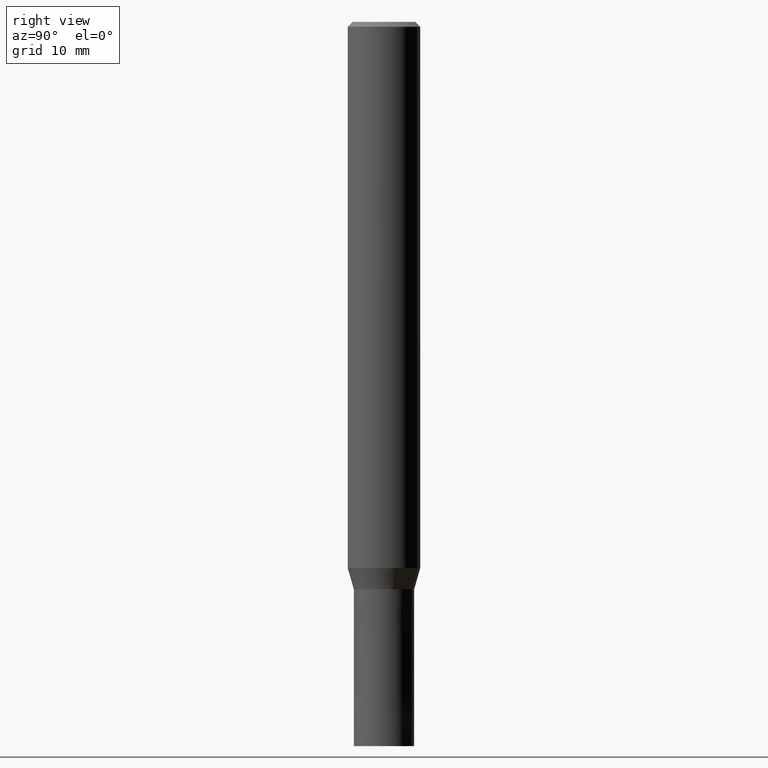
[diagram: clean part render]
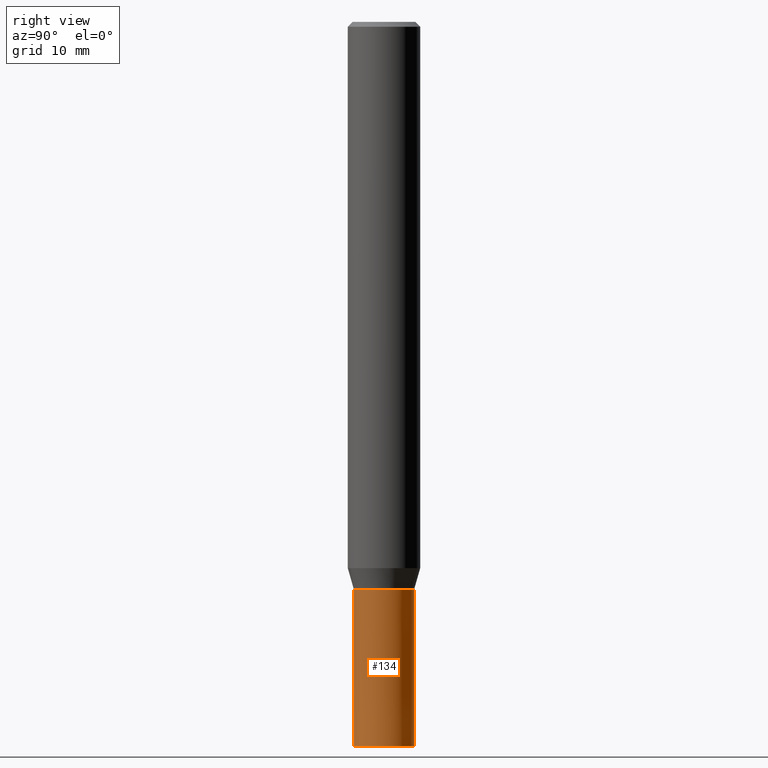
[diagram: same view with one face highlighted and labeled with its STEP entity id]
A machine part, right view. The second image highlights one B-rep face of the part: STEP entity #134.
In plain terms, the highlighted conical surface has half-angle 0 deg.
Its self-contained STEP definition (entity closure, byte-faithful):
#86=EDGE_CURVE('',#160,#100,#207,.T.);
#100=VERTEX_POINT('',#222);
#124=EDGE_CURVE('',#160,#168,#248,.T.);
#126=EDGE_CURVE('',#168,#170,#250,.T.);
#134=ADVANCED_FACE('',(#259),#260,.T.);
#160=VERTEX_POINT('',#291);
#168=VERTEX_POINT('',#299);
#170=VERTEX_POINT('',#301);
#174=EDGE_CURVE('',#170,#100,#305,.T.);
#207=CIRCLE('',#336,2.4999);
#222=CARTESIAN_POINT('',(3.06139342392056E-016,-2.4999,-47.0));
#248=LINE('',#390,#391);
#250=CIRCLE('',#394,2.5);
#259=FACE_OUTER_BOUND('',#402,.T.);
#260=CONICAL_SURFACE('',#403,2.49995,7.6923076921722E-006);
#291=CARTESIAN_POINT('',(0.0,2.4999,-47.0));
#299=CARTESIAN_POINT('',(0.0,2.5,-60.0));
#301=CARTESIAN_POINT('',(3.06151588455594E-016,-2.5,-60.0));
#305=LINE('',#458,#459);
#336=AXIS2_PLACEMENT_3D('',#479,#480,#481);
#390=CARTESIAN_POINT('',(-3.06145465423825E-016,2.49995,-53.5));
#391=VECTOR('',#525,1.0);
#394=AXIS2_PLACEMENT_3D('',#526,#527,#528);
#402=EDGE_LOOP('',(#537,#538,#539,#540));
#403=AXIS2_PLACEMENT_3D('',#541,#542,#543);
#458=CARTESIAN_POINT('',(3.06145465423825E-016,-2.49995,-53.5));
#459=VECTOR('',#598,1.0);
#479=CARTESIAN_POINT('',(0.0,0.0,-47.0));
#480=DIRECTION('',(0.0,0.0,-1.0));
#481=DIRECTION('',(0.0,1.0,0.0));
#525=DIRECTION('',(-9.42004887529793E-022,7.69230769209634E-006,-0.999999999970414));
#526=CARTESIAN_POINT('',(0.0,0.0,-60.0));
#527=DIRECTION('',(0.0,0.0,-1.0));
#528=DIRECTION('',(0.0,1.0,0.0));
#537=ORIENTED_EDGE('',*,*,#124,.F.);
#538=ORIENTED_EDGE('',*,*,#86,.T.);
#539=ORIENTED_EDGE('',*,*,#174,.F.);
#540=ORIENTED_EDGE('',*,*,#126,.F.);
#541=CARTESIAN_POINT('',(0.0,0.0,-53.5));
#542=DIRECTION('',(0.0,-0.0,-1.0));
#543=DIRECTION('',(0.0,1.0,0.0));
#598=DIRECTION('',(-9.42004887529793E-022,7.69230769209634E-006,0.999999999970414));